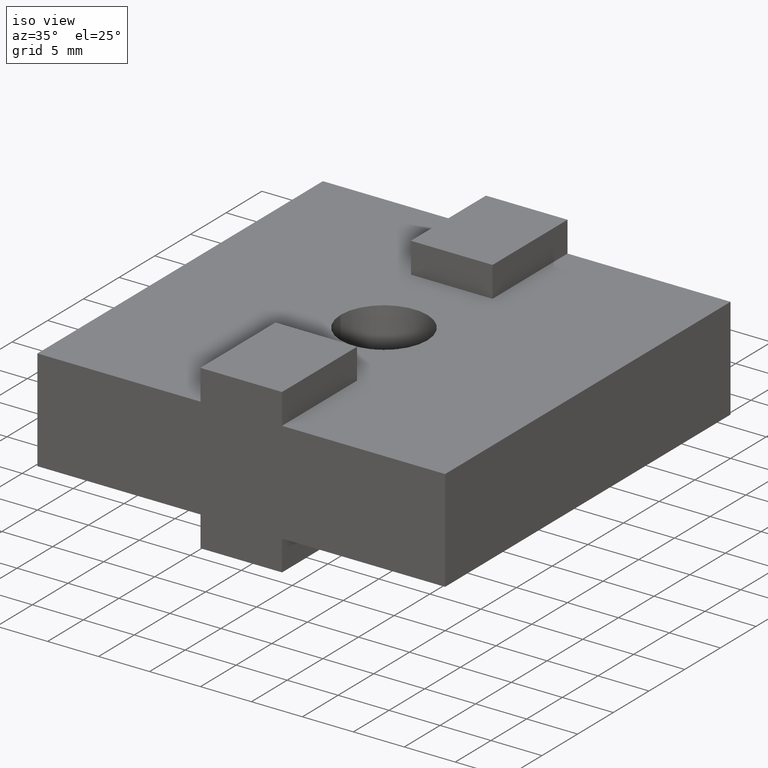
[diagram: clean part render]
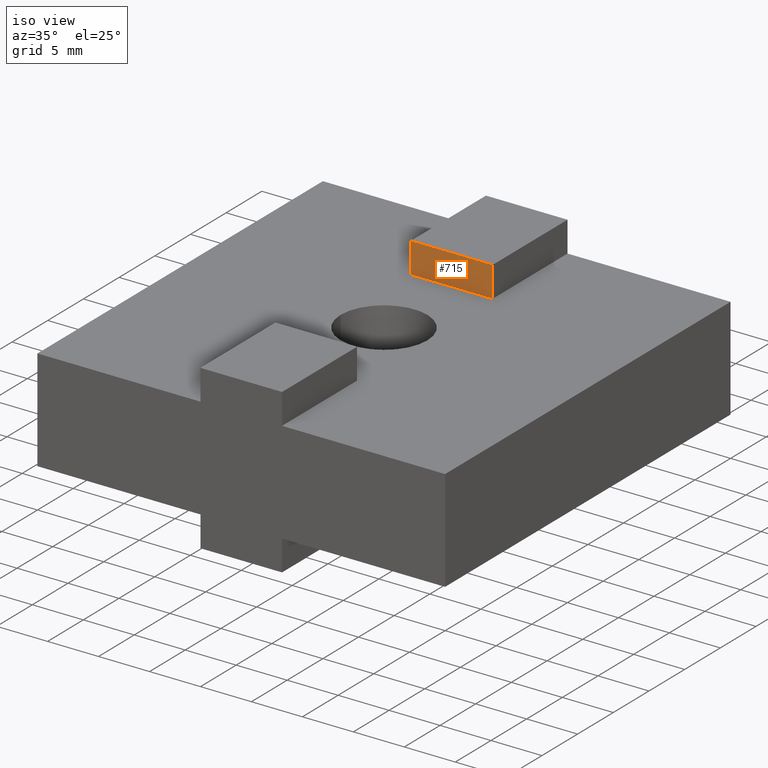
[diagram: same view with one face highlighted and labeled with its STEP entity id]
A machine part, iso view. The second image highlights one B-rep face of the part: STEP entity #715.
In plain terms, the highlighted planar face has unit normal (0, 1, 0).
Its self-contained STEP definition (entity closure, byte-faithful):
#517=CARTESIAN_POINT('',(4.0,29.500000000000000,12.999999999999996));
#518=VERTEX_POINT('',#517);
#525=CARTESIAN_POINT('',(-4.000000000000004,29.500000000000000,12.999999999999996));
#526=VERTEX_POINT('',#525);
#527=CARTESIAN_POINT('',(4.0,29.500000000000000,12.999999999999996));
#528=DIRECTION('',(-1.0,0.0,0.0));
#529=VECTOR('',#528,8.000000000000004);
#530=LINE('',#527,#529);
#531=EDGE_CURVE('',#518,#526,#530,.T.);
#567=CARTESIAN_POINT('',(4.0,29.500000000000000,16.000000000000007));
#568=VERTEX_POINT('',#567);
#575=CARTESIAN_POINT('',(4.0,29.500000000000000,12.999999999999996));
#576=DIRECTION('',(0.0,0.0,1.0));
#577=VECTOR('',#576,3.000000000000011);
#578=LINE('',#575,#577);
#579=EDGE_CURVE('',#518,#568,#578,.T.);
#592=CARTESIAN_POINT('',(-4.000000000000004,29.500000000000000,16.0));
#593=VERTEX_POINT('',#592);
#594=CARTESIAN_POINT('',(-4.000000000000004,29.500000000000000,12.999999999999996));
#595=DIRECTION('',(0.0,0.0,1.0));
#596=VECTOR('',#595,3.000000000000004);
#597=LINE('',#594,#596);
#598=EDGE_CURVE('',#526,#593,#597,.T.);
#615=CARTESIAN_POINT('',(4.0,29.500000000000000,16.0));
#616=DIRECTION('',(-1.0,0.0,0.0));
#617=VECTOR('',#616,8.000000000000004);
#618=LINE('',#615,#617);
#619=EDGE_CURVE('',#568,#593,#618,.T.);
#704=CARTESIAN_POINT('',(-4.400000000000002,29.500000000000000,12.849999999999996));
#705=DIRECTION('',(0.0,1.0,0.0));
#706=DIRECTION('',(0.0,0.0,1.0));
#707=AXIS2_PLACEMENT_3D('',#704,#705,#706);
#708=PLANE('',#707);
#709=ORIENTED_EDGE('',*,*,#619,.T.);
#710=ORIENTED_EDGE('',*,*,#598,.F.);
#711=ORIENTED_EDGE('',*,*,#531,.F.);
#712=ORIENTED_EDGE('',*,*,#579,.T.);
#713=EDGE_LOOP('',(#709,#710,#711,#712));
#714=FACE_OUTER_BOUND('',#713,.T.);
#715=ADVANCED_FACE('',(#714),#708,.F.);